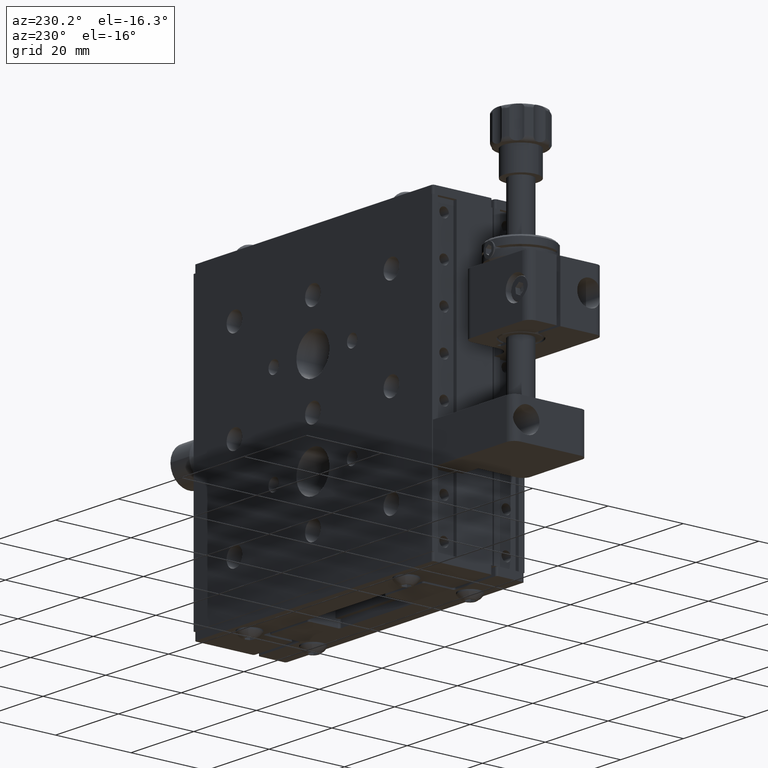
[diagram: clean part render]
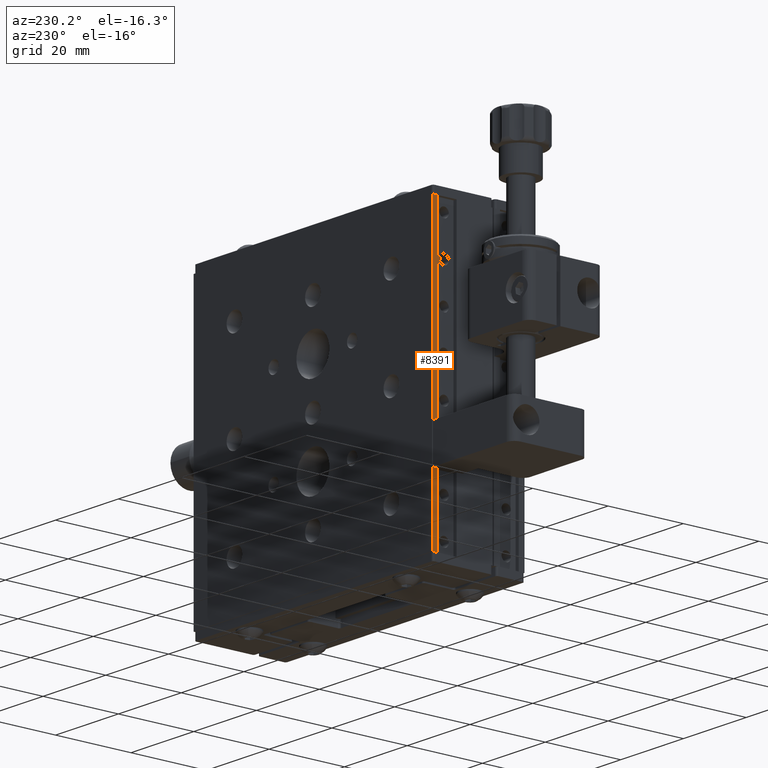
[diagram: same view with one face highlighted and labeled with its STEP entity id]
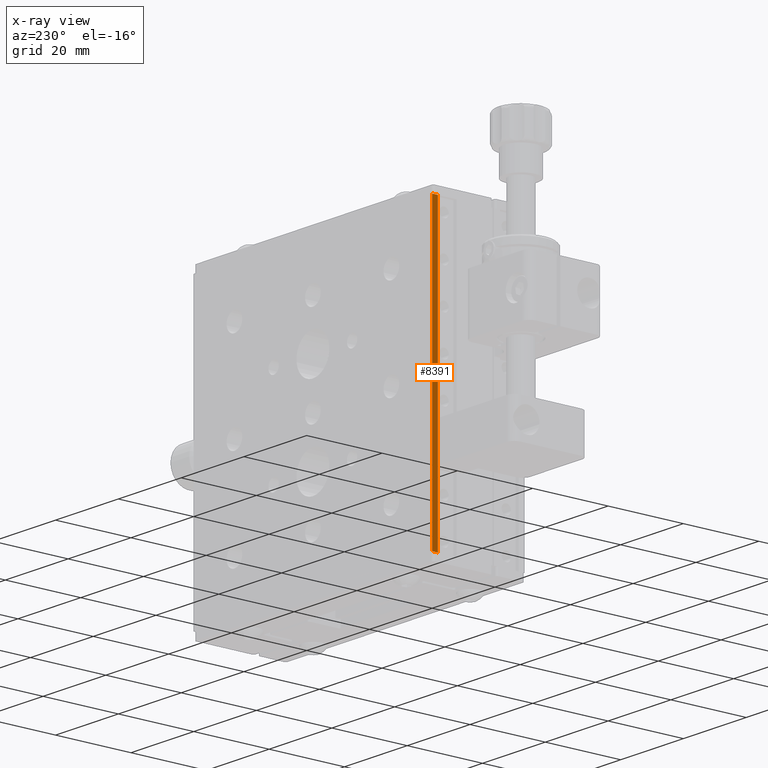
[diagram: x-ray of the same camera — body ghosted, the highlighted face saturated]
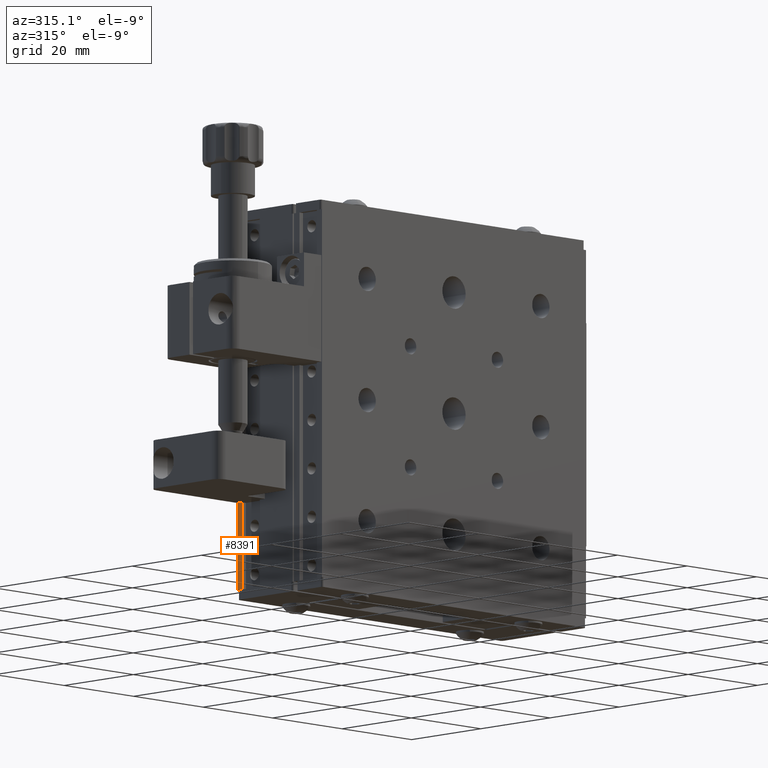
[diagram: same view with one face highlighted and labeled with its STEP entity id]
A machine part, auxiliary view. The second image highlights one B-rep face of the part: STEP entity #8391.
The next image is the same camera in x-ray: the body ghosted, the highlighted face saturated — about 0% of this face is hidden behind the body in this view.
A second angle (auxiliary view) of the same face is appended — the face is thin or edge-on in the first view.
In plain terms, the highlighted planar face has unit normal (1, 0, 0).
Its self-contained STEP definition (entity closure, byte-faithful):
#269 = ORIENTED_EDGE ( 'NONE', *, *, #19881, .F. ) ;
#6395 = VECTOR ( 'NONE', #61970, 1000.000000000000000 ) ;
#7740 = EDGE_CURVE ( 'NONE', #13815, #67619, #67930, .T. ) ;
#8391 = ADVANCED_FACE ( 'NONE', ( #25108 ), #23271, .F. ) ;
#8988 = ORIENTED_EDGE ( 'NONE', *, *, #7740, .F. ) ;
#9115 = DIRECTION ( 'NONE',  ( -3.885780586188391500E-016, 4.788109698010773900E-016, 1.000000000000000000 ) ) ;
#11816 = DIRECTION ( 'NONE',  ( 3.885780586188391500E-016, -4.788109698010773900E-016, -1.000000000000000000 ) ) ;
#12074 = CARTESIAN_POINT ( 'NONE',  ( -16.29442417223344800, 12.10644221560682300, 73.10000000000002300 ) ) ;
#13815 = VERTEX_POINT ( 'NONE', #56464 ) ;
#14792 = CARTESIAN_POINT ( 'NONE',  ( -16.29442417223355800, 13.60644221560661500, 149.1000000000000500 ) ) ;
#16702 = EDGE_CURVE ( 'NONE', #35265, #18426, #54322, .T. ) ;
#17980 = CARTESIAN_POINT ( 'NONE',  ( -16.29442417223344800, 12.10644221560686000, 149.1000000000000500 ) ) ;
#18426 = VERTEX_POINT ( 'NONE', #14792 ) ;
#19881 = EDGE_CURVE ( 'NONE', #67619, #18426, #53510, .T. ) ;
#22358 = VECTOR ( 'NONE', #9115, 1000.000000000000000 ) ;
#23271 = PLANE ( 'NONE',  #61979 ) ;
#25108 = FACE_OUTER_BOUND ( 'NONE', #41895, .T. ) ;
#29655 = ORIENTED_EDGE ( 'NONE', *, *, #16702, .T. ) ;
#32208 = LINE ( 'NONE', #39905, #46381 ) ;
#33344 = ORIENTED_EDGE ( 'NONE', *, *, #60594, .T. ) ;
#35265 = VERTEX_POINT ( 'NONE', #63107 ) ;
#35970 = CARTESIAN_POINT ( 'NONE',  ( -16.29442417223355800, 13.60644221560656500, 73.10000000000002300 ) ) ;
#37265 = CARTESIAN_POINT ( 'NONE',  ( -16.29442417223355800, 13.60644221560656500, 73.10000000000002300 ) ) ;
#39281 = CARTESIAN_POINT ( 'NONE',  ( -16.29442417223344800, 12.10644221560682300, 73.10000000000002300 ) ) ;
#39905 = CARTESIAN_POINT ( 'NONE',  ( -16.29442417223344800, 12.10644221560682300, 73.10000000000002300 ) ) ;
#40166 = DIRECTION ( 'NONE',  ( 1.000000000000000000, 7.158612722269235200E-014, 3.885780586188048900E-016 ) ) ;
#41895 = EDGE_LOOP ( 'NONE', ( #29655, #269, #8988, #33344 ) ) ;
#44586 = DIRECTION ( 'NONE',  ( -7.278135407893189700E-014, 1.000000000000000000, 5.472125369155490400E-016 ) ) ;
#46381 = VECTOR ( 'NONE', #51370, 1000.000000000000000 ) ;
#51370 = DIRECTION ( 'NONE',  ( -3.885780586188391500E-016, 4.788109698010773900E-016, 1.000000000000000000 ) ) ;
#53510 = LINE ( 'NONE', #37265, #22358 ) ;
#54322 = LINE ( 'NONE', #17980, #61774 ) ;
#56464 = CARTESIAN_POINT ( 'NONE',  ( -16.29442417223344800, 12.10644221560682300, 73.10000000000002300 ) ) ;
#60594 = EDGE_CURVE ( 'NONE', #13815, #35265, #32208, .T. ) ;
#61774 = VECTOR ( 'NONE', #44586, 1000.000000000000000 ) ;
#61970 = DIRECTION ( 'NONE',  ( -7.278135407893189700E-014, 1.000000000000000000, 5.472125369155490400E-016 ) ) ;
#61979 = AXIS2_PLACEMENT_3D ( 'NONE', #12074, #40166, #11816 ) ;
#63107 = CARTESIAN_POINT ( 'NONE',  ( -16.29442417223344800, 12.10644221560686000, 149.1000000000000500 ) ) ;
#67619 = VERTEX_POINT ( 'NONE', #35970 ) ;
#67930 = LINE ( 'NONE', #39281, #6395 ) ;